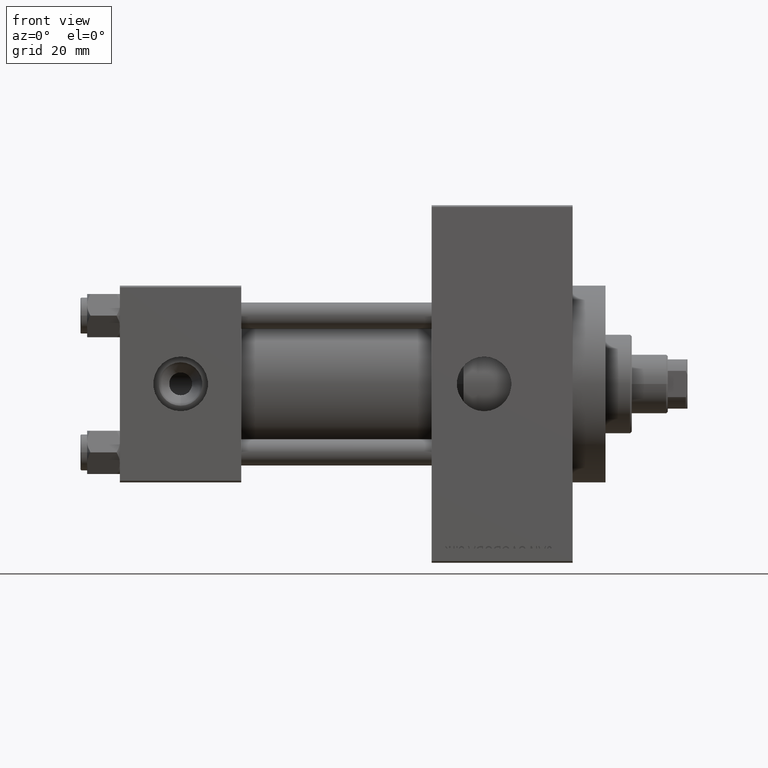
[diagram: clean part render]
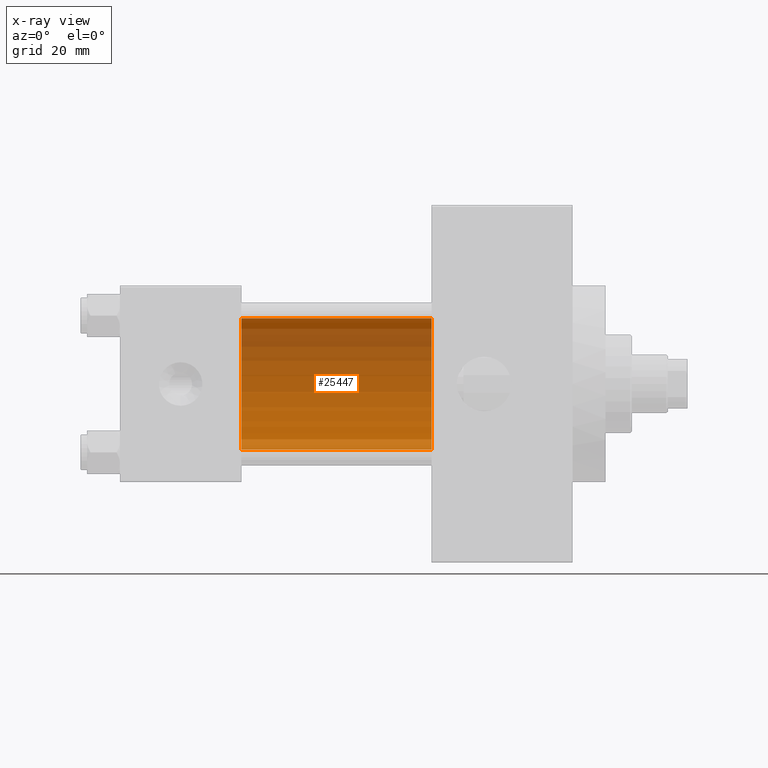
[diagram: x-ray — body ghosted, one internal face saturated and labeled with its STEP entity id]
A machine part, front view, then the same camera in x-ray: the body is ghosted and one INTERNAL B-rep face — a face not visible from any outside direction — is saturated and labeled: STEP entity #25447.
In plain terms, the highlighted cylindrical surface (partial cylindrical patch) has radius 20 mm, axis along (-1, -0, -0).
Its self-contained STEP definition (entity closure, byte-faithful):
#2079 = DIRECTION ( 'NONE',  ( 0.000000000000000000, 0.000000000000000000, -1.000000000000000000 ) ) ;
#2331 = VERTEX_POINT ( 'NONE', #13021 ) ;
#5156 = VERTEX_POINT ( 'NONE', #23713 ) ;
#5665 = DIRECTION ( 'NONE',  ( 1.000000000000000000, 0.000000000000000000, 0.000000000000000000 ) ) ;
#7088 = VERTEX_POINT ( 'NONE', #36752 ) ;
#7511 = EDGE_LOOP ( 'NONE', ( #20098, #19150, #17474, #47224 ) ) ;
#8829 = LINE ( 'NONE', #26559, #46850 ) ;
#9421 = DIRECTION ( 'NONE',  ( -1.000000000000000000, -0.000000000000000000, -0.000000000000000000 ) ) ;
#9833 = CARTESIAN_POINT ( 'NONE',  ( 95.00000000000000000, -1.527916156705046464E-16, -20.00000000000000000 ) ) ;
#11111 = VECTOR ( 'NONE', #37806, 1000.000000000000000 ) ;
#13008 = CARTESIAN_POINT ( 'NONE',  ( 95.00000000000000000, -2.602085213965210642E-15, 0.000000000000000000 ) ) ;
#13021 = CARTESIAN_POINT ( 'NONE',  ( 37.00000000000000000, -2.602085213965210642E-15, 20.00000000000000000 ) ) ;
#14104 = EDGE_CURVE ( 'NONE', #26578, #7088, #41649, .T. ) ;
#15376 = CARTESIAN_POINT ( 'NONE',  ( 95.00000000000000000, -1.527916156705046464E-16, -20.00000000000000000 ) ) ;
#16608 = FACE_OUTER_BOUND ( 'NONE', #7511, .T. ) ;
#17474 = ORIENTED_EDGE ( 'NONE', *, *, #44856, .T. ) ;
#19150 = ORIENTED_EDGE ( 'NONE', *, *, #14104, .T. ) ;
#20098 = ORIENTED_EDGE ( 'NONE', *, *, #38440, .F. ) ;
#20584 = CIRCLE ( 'NONE', #24420, 20.00000000000000000 ) ;
#20883 = EDGE_CURVE ( 'NONE', #5156, #2331, #20584, .T. ) ;
#23707 = CARTESIAN_POINT ( 'NONE',  ( 95.00000000000000000, -2.602085213965210642E-15, 0.000000000000000000 ) ) ;
#23713 = CARTESIAN_POINT ( 'NONE',  ( 37.00000000000000000, -1.527916156705046464E-16, -20.00000000000000000 ) ) ;
#24420 = AXIS2_PLACEMENT_3D ( 'NONE', #38392, #5665, #2079 ) ;
#24545 = AXIS2_PLACEMENT_3D ( 'NONE', #13008, #9421, #38573 ) ;
#25447 = ADVANCED_FACE ( 'NONE', ( #16608 ), #45743, .F. ) ;
#26443 = AXIS2_PLACEMENT_3D ( 'NONE', #23707, #26584, #37547 ) ;
#26559 = CARTESIAN_POINT ( 'NONE',  ( 95.00000000000000000, -2.602085213965210642E-15, 20.00000000000000000 ) ) ;
#26578 = VERTEX_POINT ( 'NONE', #15376 ) ;
#26584 = DIRECTION ( 'NONE',  ( 1.000000000000000000, 0.000000000000000000, 0.000000000000000000 ) ) ;
#28018 = LINE ( 'NONE', #9833, #11111 ) ;
#34406 = DIRECTION ( 'NONE',  ( -1.000000000000000000, -0.000000000000000000, -0.000000000000000000 ) ) ;
#36752 = CARTESIAN_POINT ( 'NONE',  ( 95.00000000000000000, -2.602085213965210642E-15, 20.00000000000000000 ) ) ;
#37547 = DIRECTION ( 'NONE',  ( 0.000000000000000000, 0.000000000000000000, -1.000000000000000000 ) ) ;
#37806 = DIRECTION ( 'NONE',  ( -1.000000000000000000, -0.000000000000000000, -0.000000000000000000 ) ) ;
#38392 = CARTESIAN_POINT ( 'NONE',  ( 37.00000000000000000, -2.602085213965210642E-15, 0.000000000000000000 ) ) ;
#38440 = EDGE_CURVE ( 'NONE', #26578, #5156, #28018, .T. ) ;
#38573 = DIRECTION ( 'NONE',  ( 0.000000000000000000, 0.000000000000000000, 1.000000000000000000 ) ) ;
#41649 = CIRCLE ( 'NONE', #26443, 20.00000000000000000 ) ;
#44856 = EDGE_CURVE ( 'NONE', #7088, #2331, #8829, .T. ) ;
#45743 = CYLINDRICAL_SURFACE ( 'NONE', #24545, 20.00000000000000000 ) ;
#46850 = VECTOR ( 'NONE', #34406, 1000.000000000000000 ) ;
#47224 = ORIENTED_EDGE ( 'NONE', *, *, #20883, .F. ) ;